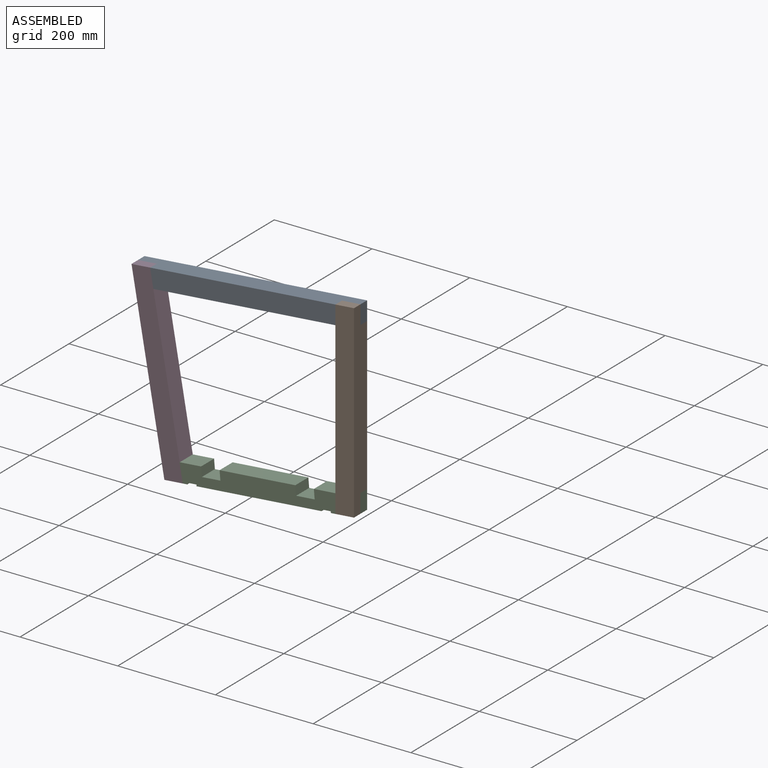
[diagram: assembled view]
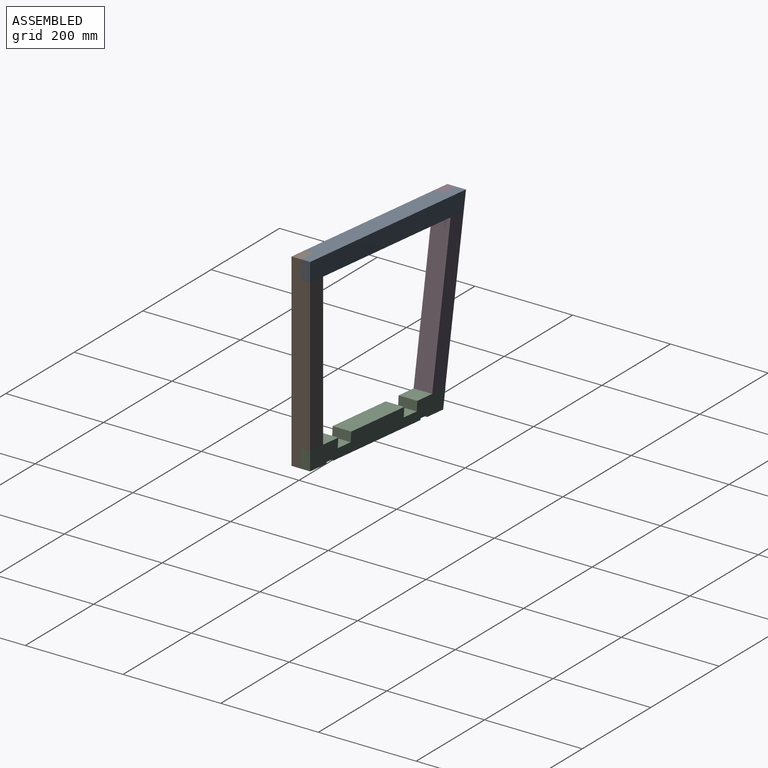
[diagram: assembled view, second angle]
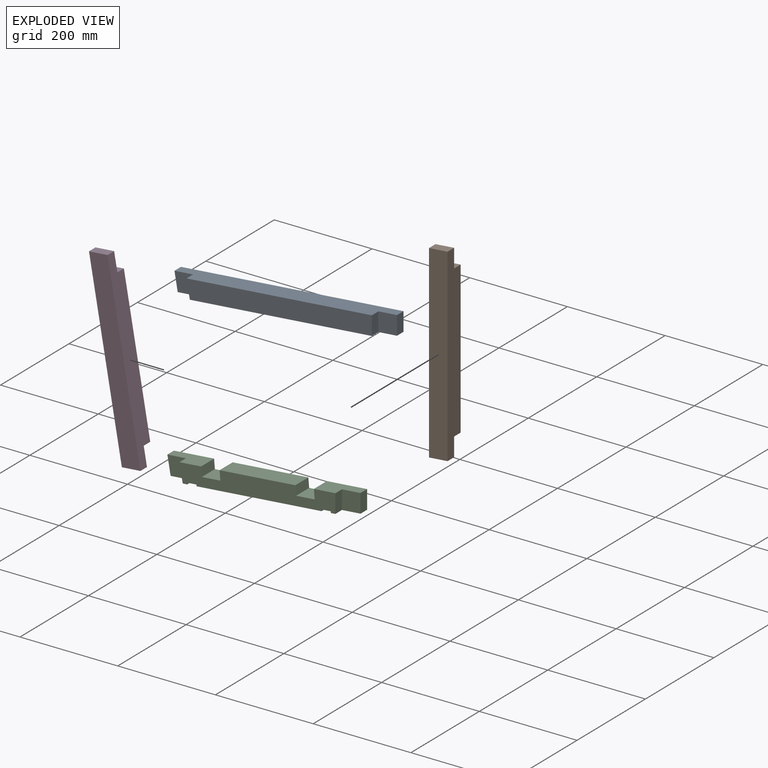
[diagram: exploded view]
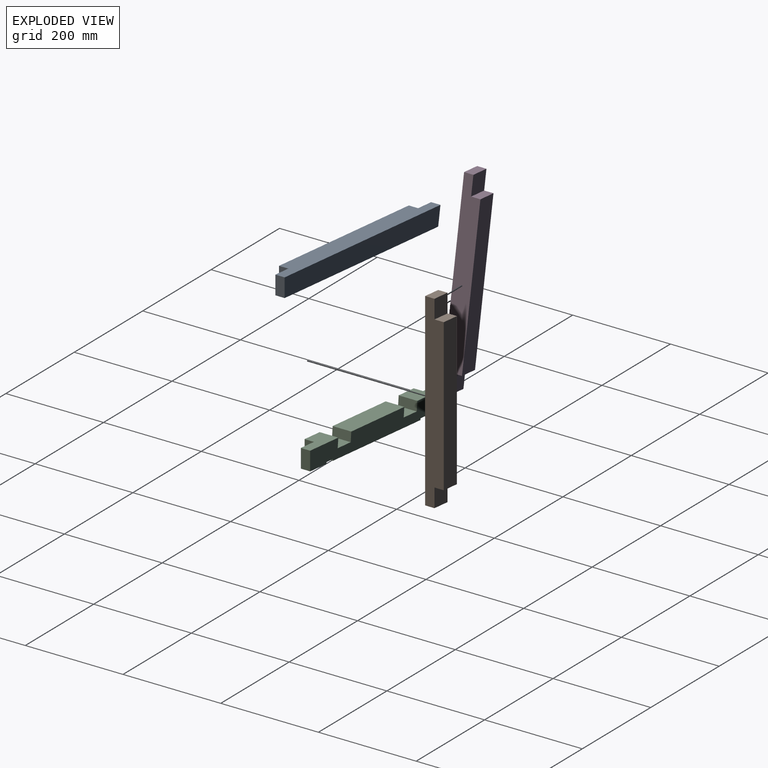
[diagram: exploded view, second angle]
ASSEMBLY  parts=4 mates=3
PART A: 10 faces, bbox 457.2x38.1x38.1 mm
  f0: plane 450.53x38.1mm, normal (0,0,-1), area 15708.2mm2, adj f1,f2,f4,f5,f6,f7,f8,f9
  f1: plane 38.1x19.05mm, normal (-1,0,-0.09), area 728.6mm2, adj f0,f3,f5,f9
  f2: plane 380.71x38.1mm, normal (0,-1,0), area 14378mm2, adj f0,f3,f6,f8
  f3: plane 457.2x38.1mm, normal (0,0,1), area 15962.2mm2, adj f1,f2,f4,f5,f6,f7,f8,f9
  f4: plane 38.1x19.05mm, normal (1,0,-0.09), area 728.6mm2, adj f0,f3,f5,f7
  f5: plane 457.2x38.1mm, normal (0,1,0), area 17292.3mm2, adj f0,f1,f3,f4
  f6: plane 38.1x19.05mm, normal (1,0,-0.09), area 728.6mm2, adj f0,f2,f3,f7
  f7: plane 41.58x38.1mm, normal (0,-1,0), area 1457.2mm2, adj f0,f3,f4,f6
  f8: plane 38.1x19.05mm, normal (-1,0,-0.09), area 728.6mm2, adj f0,f2,f3,f9
  f9: plane 41.58x38.1mm, normal (0,-1,0), area 1457.2mm2, adj f0,f1,f3,f8
PART B: 10 faces, bbox 390.7x38.1x38.1 mm
  f0: plane 387.35x38.1mm, normal (0,0,1), area 13300.9mm2, adj f1,f2,f4,f5,f6,f7,f8,f9
  f1: plane 38.1x19.05mm, normal (-1,0,0.09), area 728.6mm2, adj f0,f3,f5,f9
  f2: plane 314.19x38.1mm, normal (0,-1,0), area 11843.7mm2, adj f0,f3,f6,f8
  f3: plane 387.35x38.1mm, normal (0,0,-1), area 13300.9mm2, adj f1,f2,f4,f5,f6,f7,f8,f9
  f4: plane 38.1x19.05mm, normal (1,0,-0.09), area 728.6mm2, adj f0,f3,f5,f7
  f5: plane 390.68x38.1mm, normal (0,1,0), area 14758mm2, adj f0,f1,f3,f4
  f6: plane 38.1x19.05mm, normal (1,0,-0.09), area 728.6mm2, adj f0,f2,f3,f7
  f7: plane 41.58x38.1mm, normal (0,-1,0), area 1457.2mm2, adj f0,f3,f4,f6
  f8: plane 38.1x19.05mm, normal (-1,0,0.09), area 728.6mm2, adj f0,f2,f3,f9
  f9: plane 41.58x38.1mm, normal (0,-1,0), area 1457.2mm2, adj f0,f1,f3,f8
PART C: 26 faces, bbox 396.9x38.1x38.1 mm
  f0: plane 155.58x38.1mm, normal (0,0,1), area 5927.4mm2, adj f1,f2,f15,f23
  f1: plane 396.88x38.1mm, normal (0,1,0), area 13421.4mm2, adj f0,f3,f4,f5,f6,f7,f8,f9
  f2: plane 320.38x38.1mm, normal (0,-1,0), area 10507.1mm2, adj f0,f3,f4,f5,f6,f8,f10,f12
  f3: plane 256.86x38.1mm, normal (0,0,-1), area 9786.3mm2, adj f1,f2,f17,f22
  f4: plane 47.63x38.1mm, normal (0,0,-1), area 1085.9mm2, adj f1,f2,f7,f12,f13,f19
  f5: plane 82.55x38.1mm, normal (0,0,1), area 2416.6mm2, adj f1,f2,f9,f10,f11,f14
  f6: plane 47.63x38.1mm, normal (0,0,-1), area 1085.9mm2, adj f1,f2,f9,f10,f11,f20
  f7: plane 38.1x19.05mm, normal (-1,0,-0.09), area 728.6mm2, adj f1,f4,f8,f13
  f8: plane 82.55x38.1mm, normal (0,0,1), area 2416.6mm2, adj f1,f2,f7,f12,f13,f24
  f9: plane 38.1x19.05mm, normal (1,0,-0.09), area 728.6mm2, adj f1,f5,f6,f11
  f10: plane 38.1x19.05mm, normal (1,0,-0.09), area 728.6mm2, adj f2,f5,f6,f11
  f11: plane 41.58x38.1mm, normal (0,-1,0), area 1457.2mm2, adj f5,f6,f9,f10
  f12: plane 38.1x19.05mm, normal (-1,0,-0.09), area 728.6mm2, adj f2,f4,f8,f13
  f13: plane 41.58x38.1mm, normal (0,-1,0), area 1457.2mm2, adj f4,f7,f8,f12
  f14: plane 38.1x19.05mm, normal (-1,0,0), area 725.8mm2, adj f1,f2,f5,f16
  f15: plane 38.1x19.05mm, normal (1,0,0), area 725.8mm2, adj f0,f1,f2,f16
  f16: plane 38.1x38.1mm, normal (0,0,1), area 1451.6mm2, adj f1,f2,f14,f15
  f17: plane 38.1x3.18mm, normal (-1,0,0), area 121mm2, adj f1,f2,f3,f18
  f18: plane 38.1x19.05mm, normal (0,0,-1), area 725.8mm2, adj f1,f2,f17,f19
  f19: plane 38.1x3.18mm, normal (1,0,0), area 121mm2, adj f1,f2,f4,f18
  f20: plane 38.1x3.18mm, normal (-1,0,0), area 121mm2, adj f1,f2,f6,f21
  f21: plane 38.1x19.05mm, normal (0,0,-1), area 725.8mm2, adj f1,f2,f20,f22
  f22: plane 38.1x3.18mm, normal (1,0,0), area 121mm2, adj f1,f2,f3,f21
  f23: plane 38.1x19.05mm, normal (-1,0,0), area 725.8mm2, adj f0,f1,f2,f25
  f24: plane 38.1x19.05mm, normal (1,0,0), area 725.8mm2, adj f1,f2,f8,f25
  f25: plane 38.1x38.1mm, normal (0,0,1), area 1451.6mm2, adj f1,f2,f23,f24
PART D: 10 faces, bbox 390.7x38.1x38.1 mm
  f0: plane 387.35x38.1mm, normal (0,0,-1), area 13300.9mm2, adj f1,f2,f4,f5,f6,f7,f8,f9
  f1: plane 38.1x19.05mm, normal (-1,0,-0.09), area 728.6mm2, adj f0,f3,f5,f9
  f2: plane 314.19x38.1mm, normal (0,-1,0), area 11843.7mm2, adj f0,f3,f6,f8
  f3: plane 387.35x38.1mm, normal (0,0,1), area 13300.9mm2, adj f1,f2,f4,f5,f6,f7,f8,f9
  f4: plane 38.1x19.05mm, normal (1,0,0.09), area 728.6mm2, adj f0,f3,f5,f7
  f5: plane 390.68x38.1mm, normal (0,1,0), area 14758mm2, adj f0,f1,f3,f4
  f6: plane 38.1x19.05mm, normal (1,0,0.09), area 728.6mm2, adj f0,f2,f3,f7
  f7: plane 41.58x38.1mm, normal (0,-1,0), area 1457.2mm2, adj f0,f3,f4,f6
  f8: plane 38.1x19.05mm, normal (-1,0,-0.09), area 728.6mm2, adj f0,f2,f3,f9
  f9: plane 41.58x38.1mm, normal (0,-1,0), area 1457.2mm2, adj f0,f1,f3,f8
PLACE A rot(axis=(0,-1,0),5deg) t=(-205.69,57.8,29.74)mm
PLACE B rot(axis=(0.71,0,0.71),180deg) t=(249.77,19.7,-317.76)mm
PLACE C rot(axis=(0,-1,0),5deg) t=(-145.59,57.8,-314.11)mm
PLACE D rot(axis=(-0.77,0,0.64),180deg) t=(-205.69,19.7,29.74)mm
MATE fastened A.f1 <-> D.f3  axis (-0.98,0,-0.17) through (-205.69,38.75,29.74)mm
MATE fastened C.f9 <-> B.f0  axis (1,0,0) through (249.77,38.75,-317.76)mm
MATE fastened A.f4 <-> B.f0  axis (1,0,0) through (249.77,38.75,69.59)mm
